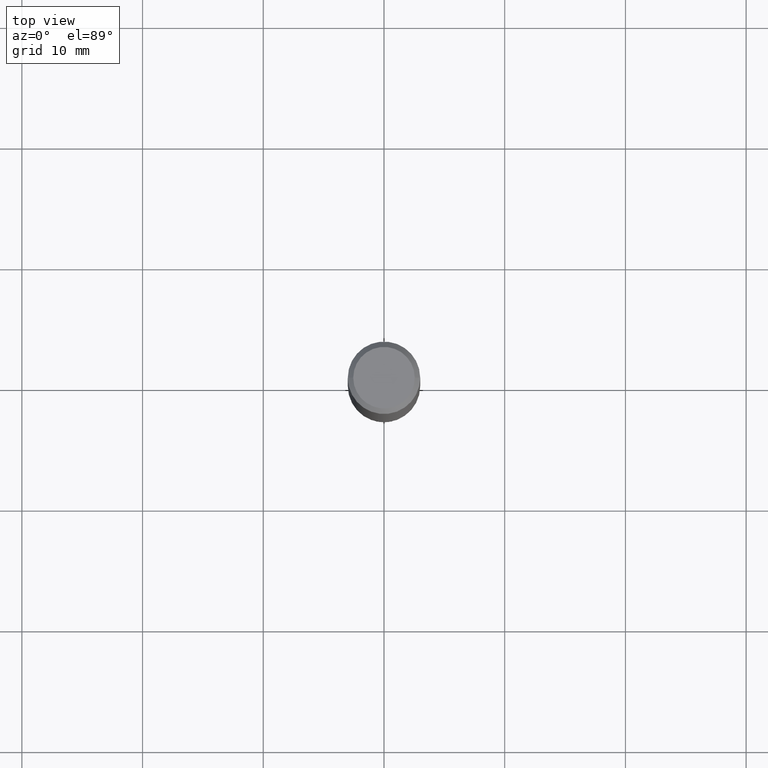
[diagram: clean part render]
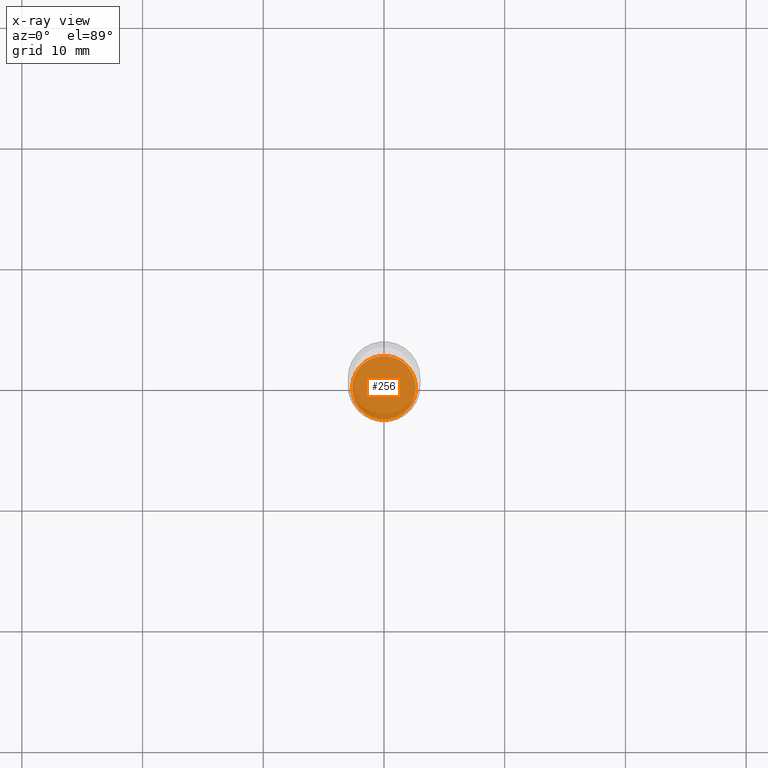
[diagram: x-ray — body ghosted, one internal face saturated and labeled with its STEP entity id]
A machine part, top view, then the same camera in x-ray: the body is ghosted and one INTERNAL B-rep face — a face not visible from any outside direction — is saturated and labeled: STEP entity #256.
In plain terms, the highlighted planar face has unit normal (-0, 0, 1).
Its self-contained STEP definition (entity closure, byte-faithful):
#11 = DIRECTION ( 'NONE',  ( 1.000000000000000000, -6.982962677686265922E-15, 4.876176775795935793E-29 ) ) ;
#13 = CARTESIAN_POINT ( 'NONE',  ( 0.1039999999999999813, -7.406130215954078619E-15, -1.913200000000000234 ) ) ;
#46 = DIRECTION ( 'NONE',  ( 1.000000000000000000, -6.982962677686269077E-15, 0.000000000000000000 ) ) ;
#79 = CARTESIAN_POINT ( 'NONE',  ( -0.1039999999999999813, -5.938288425110091840E-15, -1.913200000000000234 ) ) ;
#81 = EDGE_CURVE ( 'NONE', #319, #212, #426, .T. ) ;
#125 = PLANE ( 'NONE',  #165 ) ;
#133 = ORIENTED_EDGE ( 'NONE', *, *, #81, .F. ) ;
#165 = AXIS2_PLACEMENT_3D ( 'NONE', #344, #333, #11 ) ;
#178 = AXIS2_PLACEMENT_3D ( 'NONE', #330, #403, #257 ) ;
#180 = AXIS2_PLACEMENT_3D ( 'NONE', #299, #416, #46 ) ;
#212 = VERTEX_POINT ( 'NONE', #79 ) ;
#231 = EDGE_LOOP ( 'NONE', ( #133, #280 ) ) ;
#256 = ADVANCED_FACE ( 'NONE', ( #337 ), #125, .F. ) ;
#257 = DIRECTION ( 'NONE',  ( 1.000000000000000000, -6.982962677686269077E-15, 0.000000000000000000 ) ) ;
#280 = ORIENTED_EDGE ( 'NONE', *, *, #322, .F. ) ;
#288 = CIRCLE ( 'NONE', #180, 0.1039999999999999813 ) ;
#299 = CARTESIAN_POINT ( 'NONE',  ( 4.678670919993403663E-29, -6.679902097474707102E-15, -1.913200000000000234 ) ) ;
#319 = VERTEX_POINT ( 'NONE', #13 ) ;
#322 = EDGE_CURVE ( 'NONE', #212, #319, #288, .T. ) ;
#330 = CARTESIAN_POINT ( 'NONE',  ( 4.678670919993403663E-29, -6.679902097474707102E-15, -1.913200000000000234 ) ) ;
#333 = DIRECTION ( 'NONE',  ( -2.438088387897960049E-29, 3.491481338843145188E-15, 1.000000000000000000 ) ) ;
#337 = FACE_OUTER_BOUND ( 'NONE', #231, .T. ) ;
#344 = CARTESIAN_POINT ( 'NONE',  ( 4.678670919993403663E-29, -6.679902097474707102E-15, -1.913200000000000234 ) ) ;
#403 = DIRECTION ( 'NONE',  ( -2.445468806185136597E-29, 3.491481338843145583E-15, 1.000000000000000000 ) ) ;
#416 = DIRECTION ( 'NONE',  ( -2.445468806185136597E-29, 3.491481338843145583E-15, 1.000000000000000000 ) ) ;
#426 = CIRCLE ( 'NONE', #178, 0.1039999999999999813 ) ;